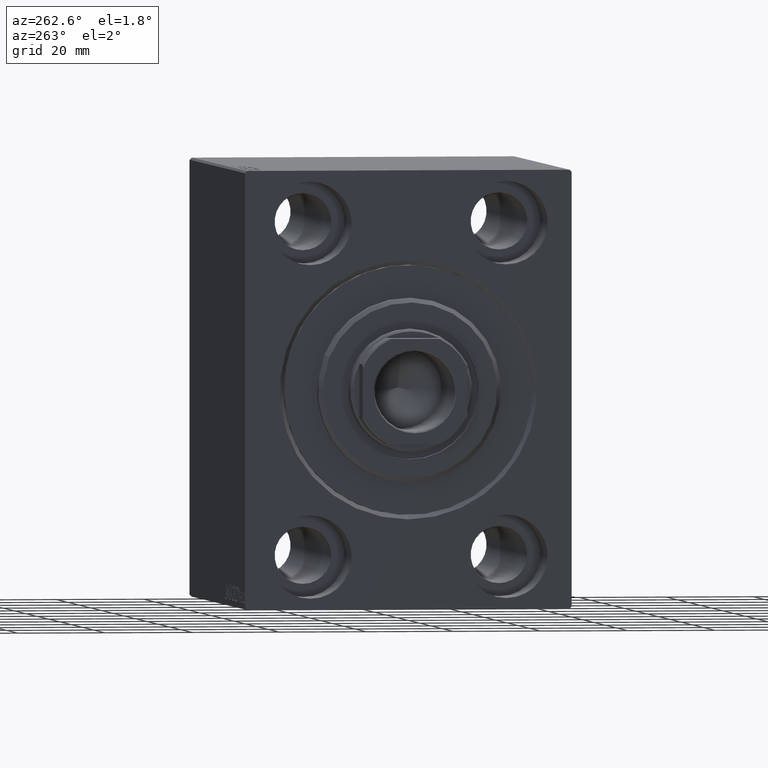
[diagram: clean part render]
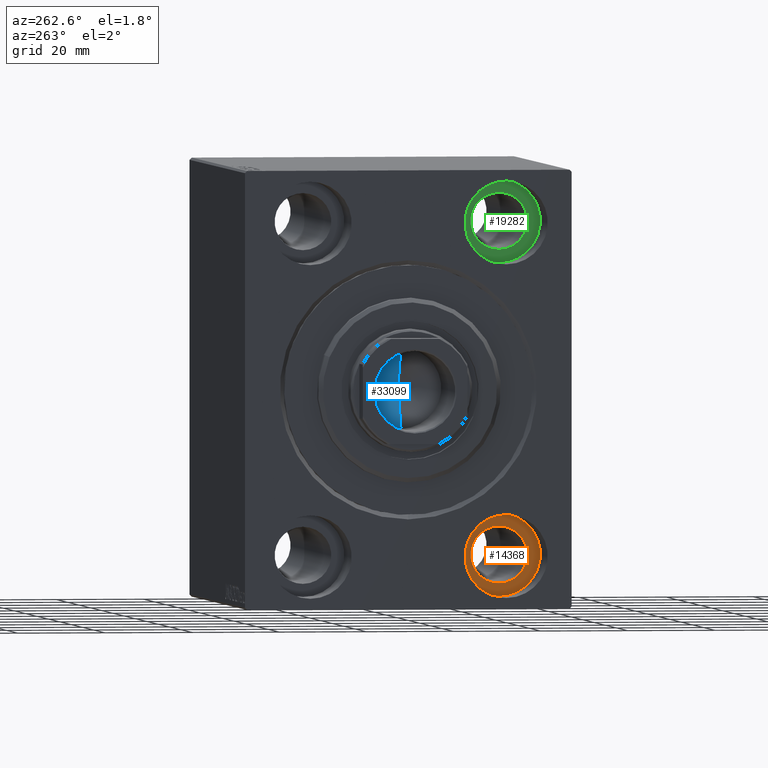
[diagram: same view with three faces highlighted in distinct colors, each labeled with its STEP entity id]
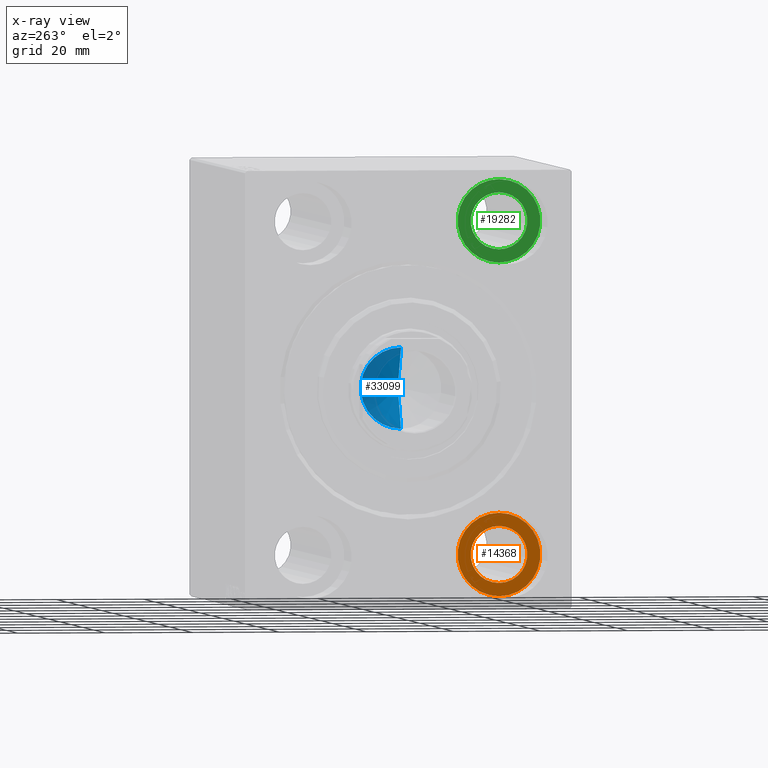
[diagram: x-ray of the same camera — body ghosted, the three highlighted faces saturated]
A machine part, auxiliary view with three faces highlighted in distinct colors.
The next image is the same camera in x-ray (body ghosted, the three faces saturated) — at least one of them is partly hidden behind the body in this view.
Their STEP definitions:

[orange] entity #14368 — the highlighted planar face has unit normal (-1, 0, 0).
#87 = CARTESIAN_POINT ( 'NONE',  ( 13.00000000000000000, 0.000000000000000000, 0.000000000000000000 ) ) ;
#1571 = DIRECTION ( 'NONE',  ( 0.000000000000000000, 0.000000000000000000, 1.000000000000000000 ) ) ;
#3606 = VERTEX_POINT ( 'NONE', #13258 ) ;
#3852 = CARTESIAN_POINT ( 'NONE',  ( 12.99999999999999822, -22.50000000000000711, -31.49999999999999289 ) ) ;
#3868 = VERTEX_POINT ( 'NONE', #26349 ) ;
#4040 = CIRCLE ( 'NONE', #42796, 9.500000000000001776 ) ;
#4636 = DIRECTION ( 'NONE',  ( 0.000000000000000000, 0.000000000000000000, 1.000000000000000000 ) ) ;
#5700 = CARTESIAN_POINT ( 'NONE',  ( 13.00000000000000000, -22.50000000000000711, -28.49999999999998934 ) ) ;
#5845 = FACE_BOUND ( 'NONE', #40924, .T. ) ;
#8267 = CARTESIAN_POINT ( 'NONE',  ( 13.00000000000000000, -22.50000000000000711, -37.99999999999999289 ) ) ;
#8945 = VERTEX_POINT ( 'NONE', #3852 ) ;
#8955 = ORIENTED_EDGE ( 'NONE', *, *, #43673, .T. ) ;
#9090 = CARTESIAN_POINT ( 'NONE',  ( 13.00000000000000000, -22.50000000000000711, -37.99999999999999289 ) ) ;
#13258 = CARTESIAN_POINT ( 'NONE',  ( 13.00000000000000000, -22.50000000000000711, -47.49999999999999289 ) ) ;
#14368 = ADVANCED_FACE ( 'NONE', ( #5845, #32782 ), #42920, .T. ) ;
#14419 = DIRECTION ( 'NONE',  ( 0.000000000000000000, 0.000000000000000000, 1.000000000000000000 ) ) ;
#18126 = ORIENTED_EDGE ( 'NONE', *, *, #34440, .F. ) ;
#18147 = DIRECTION ( 'NONE',  ( -1.000000000000000000, 0.000000000000000000, 0.000000000000000000 ) ) ;
#18545 = AXIS2_PLACEMENT_3D ( 'NONE', #24150, #20834, #14419 ) ;
#18723 = EDGE_CURVE ( 'NONE', #8945, #3868, #25199, .T. ) ;
#20834 = DIRECTION ( 'NONE',  ( -1.000000000000000000, 0.000000000000000000, 0.000000000000000000 ) ) ;
#21738 = DIRECTION ( 'NONE',  ( -1.000000000000000000, 0.000000000000000000, 0.000000000000000000 ) ) ;
#23000 = EDGE_LOOP ( 'NONE', ( #37691, #8955 ) ) ;
#24150 = CARTESIAN_POINT ( 'NONE',  ( 12.99999999999999822, -22.50000000000000711, -37.99999999999999289 ) ) ;
#24516 = DIRECTION ( 'NONE',  ( -1.000000000000000000, 0.000000000000000000, 0.000000000000000000 ) ) ;
#25140 = AXIS2_PLACEMENT_3D ( 'NONE', #9090, #36038, #26313 ) ;
#25199 = CIRCLE ( 'NONE', #30857, 6.499999999999999112 ) ;
#26313 = DIRECTION ( 'NONE',  ( 0.000000000000000000, 0.000000000000000000, 1.000000000000000000 ) ) ;
#26349 = CARTESIAN_POINT ( 'NONE',  ( 12.99999999999999822, -22.50000000000000711, -44.49999999999999289 ) ) ;
#27528 = VERTEX_POINT ( 'NONE', #5700 ) ;
#27712 = CIRCLE ( 'NONE', #18545, 6.499999999999999112 ) ;
#29804 = ORIENTED_EDGE ( 'NONE', *, *, #18723, .F. ) ;
#30857 = AXIS2_PLACEMENT_3D ( 'NONE', #41553, #18147, #1571 ) ;
#31460 = DIRECTION ( 'NONE',  ( 0.000000000000000000, 0.000000000000000000, 1.000000000000000000 ) ) ;
#31479 = CIRCLE ( 'NONE', #25140, 9.500000000000001776 ) ;
#32782 = FACE_OUTER_BOUND ( 'NONE', #23000, .T. ) ;
#34440 = EDGE_CURVE ( 'NONE', #3868, #8945, #27712, .T. ) ;
#34824 = AXIS2_PLACEMENT_3D ( 'NONE', #87, #24516, #4636 ) ;
#36038 = DIRECTION ( 'NONE',  ( -1.000000000000000000, 0.000000000000000000, 0.000000000000000000 ) ) ;
#37691 = ORIENTED_EDGE ( 'NONE', *, *, #42741, .T. ) ;
#40924 = EDGE_LOOP ( 'NONE', ( #29804, #18126 ) ) ;
#41553 = CARTESIAN_POINT ( 'NONE',  ( 12.99999999999999822, -22.50000000000000711, -37.99999999999999289 ) ) ;
#42741 = EDGE_CURVE ( 'NONE', #27528, #3606, #31479, .T. ) ;
#42796 = AXIS2_PLACEMENT_3D ( 'NONE', #8267, #21738, #31460 ) ;
#42920 = PLANE ( 'NONE',  #34824 ) ;
#43673 = EDGE_CURVE ( 'NONE', #3606, #27528, #4040, .T. ) ;

[blue] entity #33099 — the highlighted conical surface has half-angle 59 deg.
#5975 = ORIENTED_EDGE ( 'NONE', *, *, #8744, .T. ) ;
#6217 = CARTESIAN_POINT ( 'NONE',  ( 9.249999999999994671, 0.000000000000000000, 71.00000000000001421 ) ) ;
#8367 = CARTESIAN_POINT ( 'NONE',  ( -9.249999999999994671, 1.132798289211300909E-15, 71.00000000000001421 ) ) ;
#8744 = EDGE_CURVE ( 'NONE', #21708, #21905, #41057, .T. ) ;
#9614 = CARTESIAN_POINT ( 'NONE',  ( -9.249999999999994671, 1.132798289211300909E-15, 71.00000000000001421 ) ) ;
#12688 = CARTESIAN_POINT ( 'NONE',  ( 0.000000000000000000, 0.000000000000000000, 71.00000000000001421 ) ) ;
#13614 = DIRECTION ( 'NONE',  ( 0.8571673007021113344, 0.000000000000000000, 0.5150380749100558209 ) ) ;
#16137 = EDGE_CURVE ( 'NONE', #31493, #21905, #26616, .T. ) ;
#16458 = DIRECTION ( 'NONE',  ( -0.8571673007021113344, 1.049727191138617463E-16, 0.5150380749100558209 ) ) ;
#16858 = ORIENTED_EDGE ( 'NONE', *, *, #21049, .T. ) ;
#18052 = FACE_OUTER_BOUND ( 'NONE', #38512, .T. ) ;
#21049 = EDGE_CURVE ( 'NONE', #31493, #21708, #40770, .T. ) ;
#21708 = VERTEX_POINT ( 'NONE', #6217 ) ;
#21905 = VERTEX_POINT ( 'NONE', #8367 ) ;
#23071 = DIRECTION ( 'NONE',  ( 1.000000000000000000, 0.000000000000000000, 0.000000000000000000 ) ) ;
#26250 = AXIS2_PLACEMENT_3D ( 'NONE', #12688, #36329, #23071 ) ;
#26616 = LINE ( 'NONE', #9614, #36452 ) ;
#27988 = CARTESIAN_POINT ( 'NONE',  ( 0.000000000000000000, 0.000000000000000000, 71.00000000000001421 ) ) ;
#29118 = CONICAL_SURFACE ( 'NONE', #34045, 9.249999999999994671, 1.029744258676652535 ) ;
#30835 = CARTESIAN_POINT ( 'NONE',  ( 9.249999999999994671, 0.000000000000000000, 71.00000000000001421 ) ) ;
#31493 = VERTEX_POINT ( 'NONE', #42820 ) ;
#33099 = ADVANCED_FACE ( 'NONE', ( #18052 ), #29118, .F. ) ;
#34045 = AXIS2_PLACEMENT_3D ( 'NONE', #27988, #41240, #38368 ) ;
#36117 = ORIENTED_EDGE ( 'NONE', *, *, #16137, .F. ) ;
#36329 = DIRECTION ( 'NONE',  ( -0.000000000000000000, -0.000000000000000000, 1.000000000000000000 ) ) ;
#36452 = VECTOR ( 'NONE', #16458, 1000.000000000000000 ) ;
#38368 = DIRECTION ( 'NONE',  ( 1.000000000000000000, 0.000000000000000000, 0.000000000000000000 ) ) ;
#38512 = EDGE_LOOP ( 'NONE', ( #36117, #16858, #5975 ) ) ;
#40770 = LINE ( 'NONE', #30835, #42789 ) ;
#41057 = CIRCLE ( 'NONE', #26250, 9.249999999999994671 ) ;
#41240 = DIRECTION ( 'NONE',  ( -0.000000000000000000, -0.000000000000000000, 1.000000000000000000 ) ) ;
#42789 = VECTOR ( 'NONE', #13614, 1000.000000000000000 ) ;
#42820 = CARTESIAN_POINT ( 'NONE',  ( -6.793016015247754405E-15, 0.000000000000000000, 65.44203927399505005 ) ) ;

[green] entity #19282 — the highlighted planar face has unit normal (-1, 0, 0).
#118 = ORIENTED_EDGE ( 'NONE', *, *, #34436, .F. ) ;
#436 = CIRCLE ( 'NONE', #20182, 9.500000000000001776 ) ;
#526 = DIRECTION ( 'NONE',  ( 0.000000000000000000, 0.000000000000000000, 1.000000000000000000 ) ) ;
#871 = EDGE_CURVE ( 'NONE', #2408, #34110, #42074, .T. ) ;
#2126 = FACE_BOUND ( 'NONE', #4073, .T. ) ;
#2408 = VERTEX_POINT ( 'NONE', #6246 ) ;
#2532 = CARTESIAN_POINT ( 'NONE',  ( 13.00000000000000000, -22.49999999999999645, 37.99999999999999289 ) ) ;
#4073 = EDGE_LOOP ( 'NONE', ( #36137, #118 ) ) ;
#4160 = CARTESIAN_POINT ( 'NONE',  ( 12.99999999999999822, -22.49999999999999645, 37.99999999999999289 ) ) ;
#6246 = CARTESIAN_POINT ( 'NONE',  ( 12.99999999999999822, -22.49999999999999645, 44.49999999999999289 ) ) ;
#6523 = AXIS2_PLACEMENT_3D ( 'NONE', #2532, #16224, #22850 ) ;
#8357 = ORIENTED_EDGE ( 'NONE', *, *, #15024, .T. ) ;
#8743 = EDGE_CURVE ( 'NONE', #39278, #22034, #27665, .T. ) ;
#9416 = FACE_OUTER_BOUND ( 'NONE', #10041, .T. ) ;
#10041 = EDGE_LOOP ( 'NONE', ( #38546, #8357 ) ) ;
#12361 = CARTESIAN_POINT ( 'NONE',  ( 12.99999999999999822, -22.49999999999999645, 31.49999999999999289 ) ) ;
#12504 = CARTESIAN_POINT ( 'NONE',  ( 13.00000000000000000, 0.000000000000000000, 0.000000000000000000 ) ) ;
#12721 = DIRECTION ( 'NONE',  ( 0.000000000000000000, 0.000000000000000000, 1.000000000000000000 ) ) ;
#13828 = DIRECTION ( 'NONE',  ( -1.000000000000000000, 0.000000000000000000, 0.000000000000000000 ) ) ;
#14075 = CARTESIAN_POINT ( 'NONE',  ( 13.00000000000000000, -22.49999999999999645, 28.49999999999998934 ) ) ;
#14317 = AXIS2_PLACEMENT_3D ( 'NONE', #23940, #30788, #526 ) ;
#15024 = EDGE_CURVE ( 'NONE', #22034, #39278, #436, .T. ) ;
#16224 = DIRECTION ( 'NONE',  ( -1.000000000000000000, 0.000000000000000000, 0.000000000000000000 ) ) ;
#19282 = ADVANCED_FACE ( 'NONE', ( #2126, #9416 ), #28853, .T. ) ;
#20182 = AXIS2_PLACEMENT_3D ( 'NONE', #37893, #13828, #27929 ) ;
#21797 = DIRECTION ( 'NONE',  ( 0.000000000000000000, 0.000000000000000000, 1.000000000000000000 ) ) ;
#22034 = VERTEX_POINT ( 'NONE', #14075 ) ;
#22850 = DIRECTION ( 'NONE',  ( 0.000000000000000000, 0.000000000000000000, 1.000000000000000000 ) ) ;
#23940 = CARTESIAN_POINT ( 'NONE',  ( 12.99999999999999822, -22.49999999999999645, 37.99999999999999289 ) ) ;
#24707 = AXIS2_PLACEMENT_3D ( 'NONE', #4160, #41892, #21797 ) ;
#27665 = CIRCLE ( 'NONE', #6523, 9.500000000000001776 ) ;
#27929 = DIRECTION ( 'NONE',  ( 0.000000000000000000, 0.000000000000000000, 1.000000000000000000 ) ) ;
#28853 = PLANE ( 'NONE',  #42827 ) ;
#30788 = DIRECTION ( 'NONE',  ( -1.000000000000000000, 0.000000000000000000, 0.000000000000000000 ) ) ;
#34110 = VERTEX_POINT ( 'NONE', #12361 ) ;
#34436 = EDGE_CURVE ( 'NONE', #34110, #2408, #37595, .T. ) ;
#36137 = ORIENTED_EDGE ( 'NONE', *, *, #871, .F. ) ;
#37595 = CIRCLE ( 'NONE', #14317, 6.499999999999999112 ) ;
#37893 = CARTESIAN_POINT ( 'NONE',  ( 13.00000000000000000, -22.49999999999999645, 37.99999999999999289 ) ) ;
#38034 = CARTESIAN_POINT ( 'NONE',  ( 13.00000000000000000, -22.49999999999999645, 47.49999999999999289 ) ) ;
#38546 = ORIENTED_EDGE ( 'NONE', *, *, #8743, .T. ) ;
#38796 = DIRECTION ( 'NONE',  ( -1.000000000000000000, 0.000000000000000000, 0.000000000000000000 ) ) ;
#39278 = VERTEX_POINT ( 'NONE', #38034 ) ;
#41892 = DIRECTION ( 'NONE',  ( -1.000000000000000000, 0.000000000000000000, 0.000000000000000000 ) ) ;
#42074 = CIRCLE ( 'NONE', #24707, 6.499999999999999112 ) ;
#42827 = AXIS2_PLACEMENT_3D ( 'NONE', #12504, #38796, #12721 ) ;